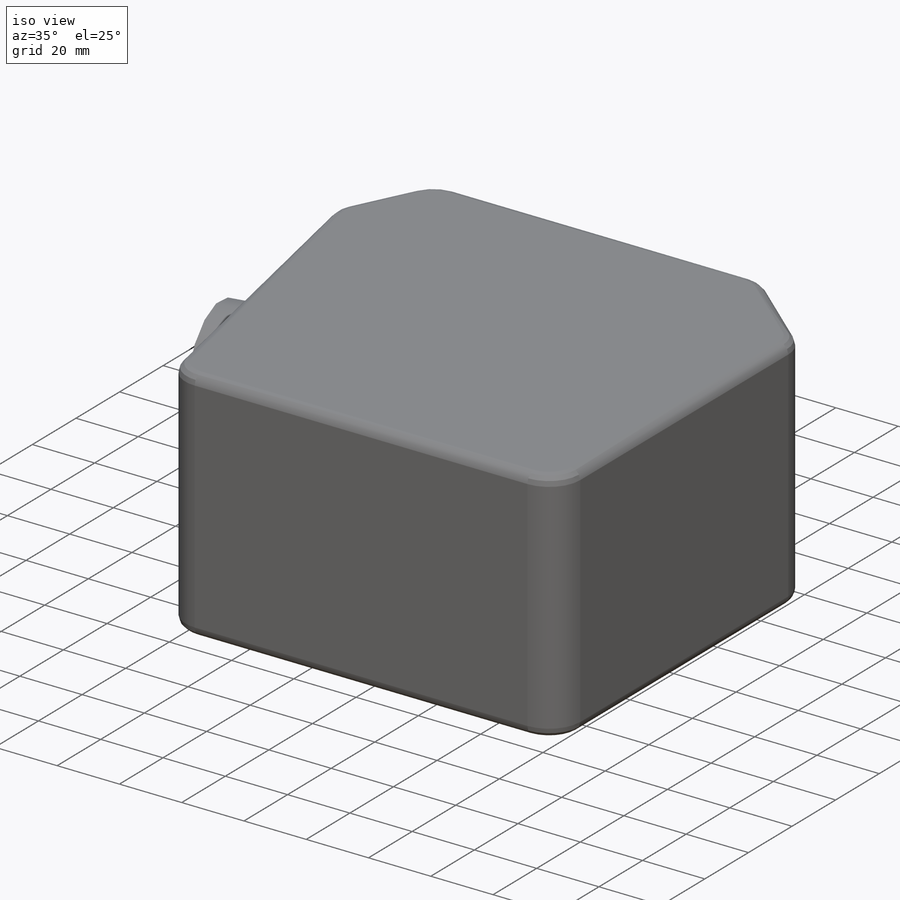
[diagram: iso view]
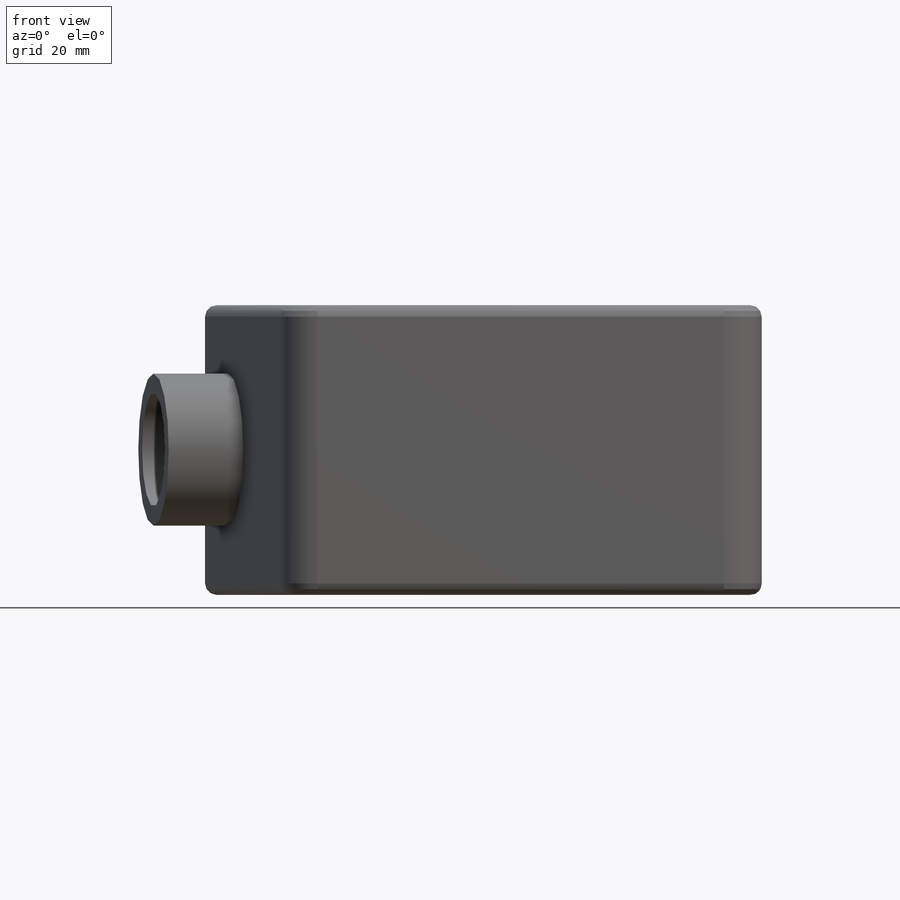
[diagram: front view]
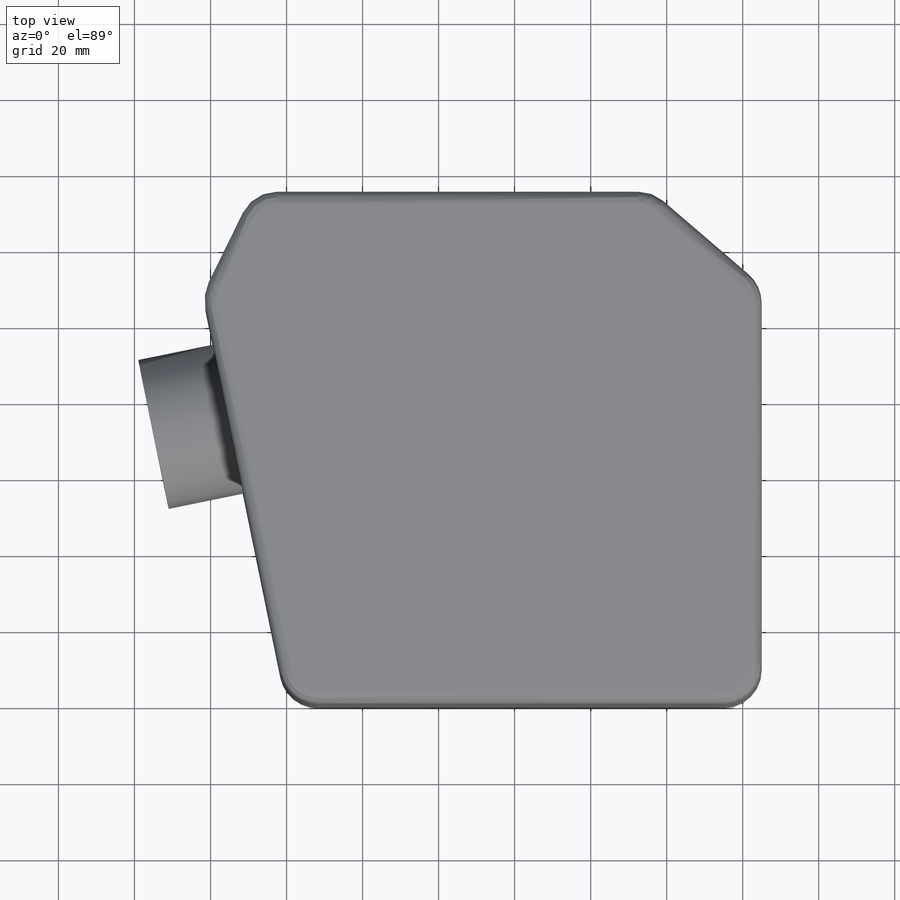
[diagram: top view]
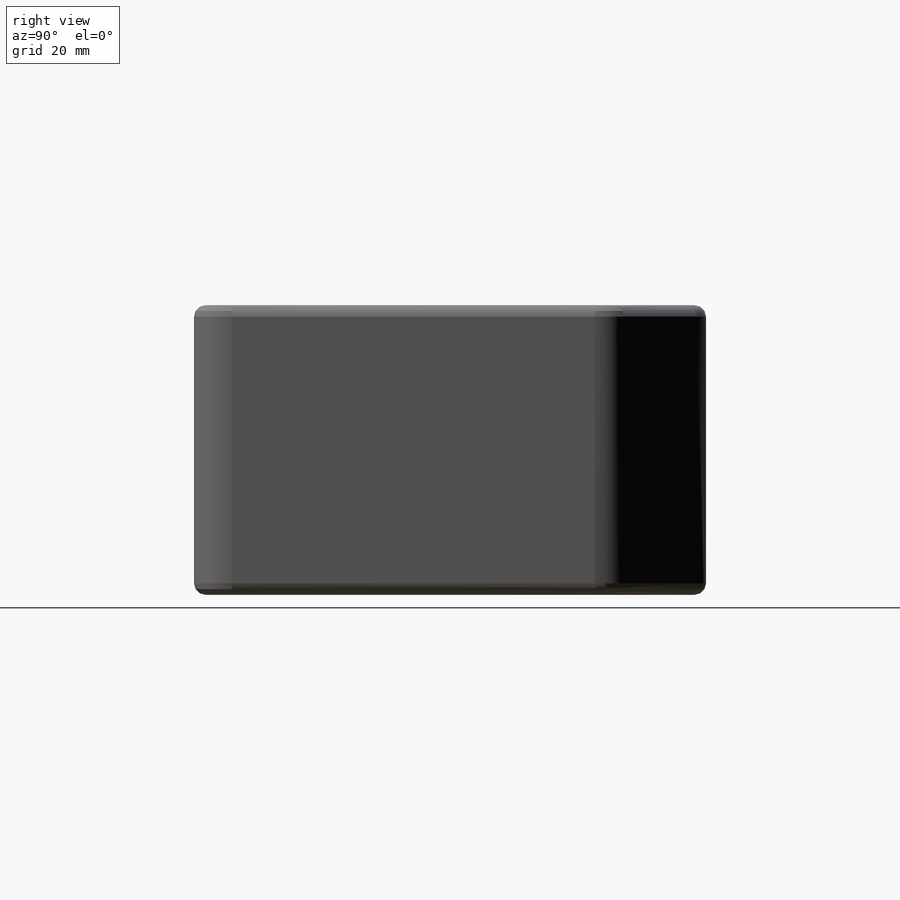
[diagram: right view]
SOLIDWORKS PART (.sldprt)
format: sldprt  version: not decoded by parser v0  size: 252,928 bytes
history: native  units: mm
features: sketch x4, extrude x2, fillet x2, material x1, cut_extrude x1, plane x1, shell x1 (+13 scaffold rows collapsed)
feature tree (25):
  scaffold x13  (default folders/planes/origin — collapsed)
  material  "Material <not specified>"
  sketch  "Sketch2"  dims[c1.D1=134.7mm c1.D2=147.0mm c1.D3=45.0mm c1.D4=105.0mm c1.D5=~131.883626mm c2.D1=134.7mm c2.D5=110.0mm c2.D6=110.0mm c2.D7=30.0mm c2.D8=~91.787257mm c2.D3=125.0mm c3.D8=~37.914108mm]
  extrude  "Boss-Extrude1"  Depth=76.2mm
  sketch  "Sketch3"  dims[c1.D1=40.0mm c1.D2=40.0mm c1.D3=40.0mm c2.D2=38.0mm c2.D3=33.0mm]
  extrude  "Boss-Extrude2"  Depth=20mm
  sketch  "Sketch4"  dims[c1.D2=~22.36068mm c1.D1=0.0mm c2.D2=5.0mm]
  cut_extrude  "Cut-Extrude1"  Depth=15mm
  plane  "Plane1"  Offset=96.77mm
  sketch  "Sketch6"  dims[D1=12.7mm D2=0.0mm D3=15.0mm D4=15.0mm]
  fillet  "Fillet1"  Radius=10mm
  fillet  "Fillet2"  Radius=3mm
  shell  "Shell1"  Thickness=5mm
decode coverage: 10 of 10 modeling features carry decoded parameters
note: ~ marks probable driven/reference dimensions
note: suppression state not decoded; provenance and decode notes live in map.json
